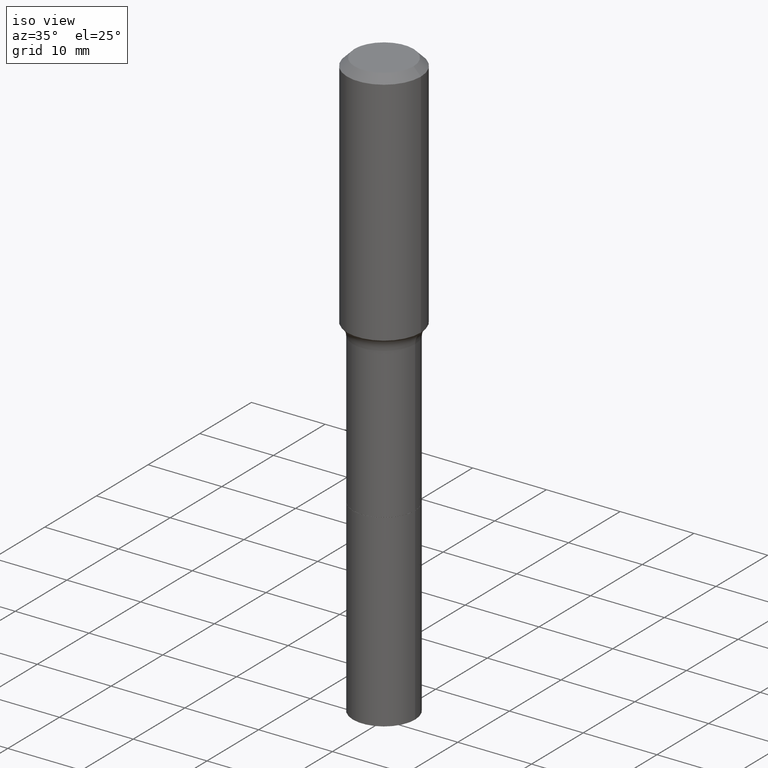
[diagram: clean part render]
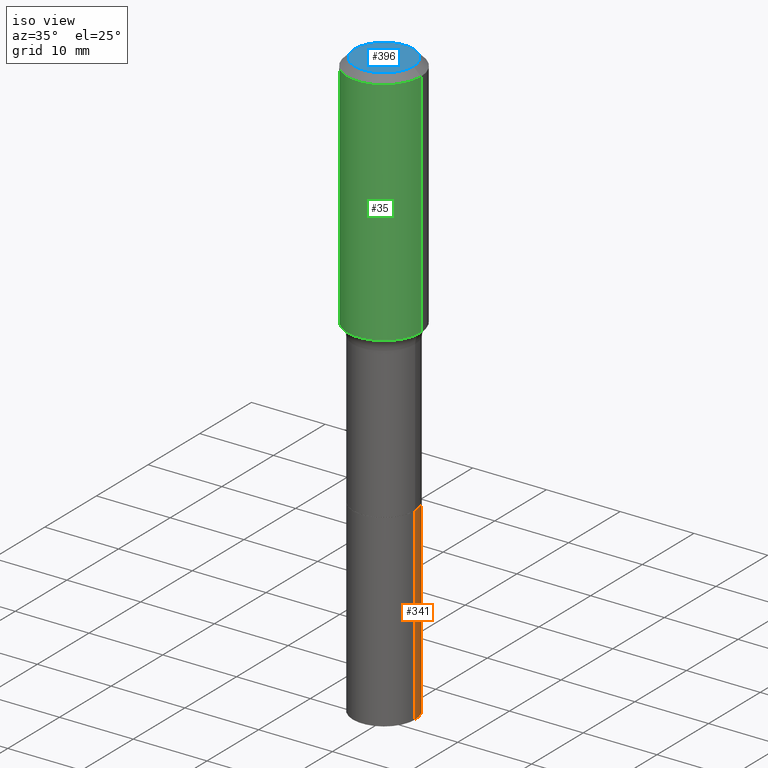
[diagram: same view with three faces highlighted in distinct colors, each labeled with its STEP entity id]
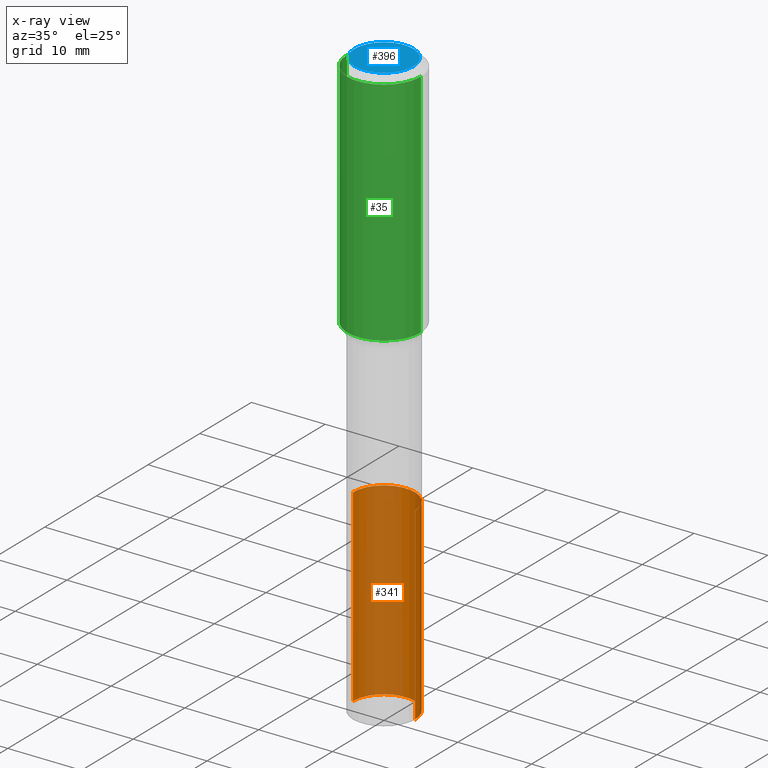
[diagram: x-ray of the same camera — body ghosted, the three highlighted faces saturated]
A machine part, iso view with three faces highlighted in distinct colors.
The next image is the same camera in x-ray (body ghosted, the three faces saturated) — at least one of them is partly hidden behind the body in this view.
Their STEP definitions:

[orange] entity #341 — the highlighted cylindrical surface (partial cylindrical patch) has radius 4.2164 mm, axis along (-0, 0, 1).
#1 = EDGE_CURVE ( 'NONE', #290, #178, #314, .T. ) ;
#38 = DIRECTION ( 'NONE',  ( 1.000000000000000000, -6.982962677686268288E-15, 0.000000000000000000 ) ) ;
#69 = DIRECTION ( 'NONE',  ( -2.445468806185136877E-29, 3.491481338843145188E-15, 1.000000000000000000 ) ) ;
#75 = CARTESIAN_POINT ( 'NONE',  ( 5.237215995326088654E-29, -7.477356435266480697E-15, -2.141600000000000392 ) ) ;
#91 = ORIENTED_EDGE ( 'NONE', *, *, #282, .F. ) ;
#94 = CIRCLE ( 'NONE', #453, 0.1660000000000000087 ) ;
#109 = DIRECTION ( 'NONE',  ( -2.445468806185136597E-29, 3.491481338843145583E-15, 1.000000000000000000 ) ) ;
#142 = CARTESIAN_POINT ( 'NONE',  ( -0.1660000000000002307, -8.057562088681656781E-15, -3.149600000000000399 ) ) ;
#144 = CARTESIAN_POINT ( 'NONE',  ( -0.1660000000000000087, -8.057562088681659936E-15, -2.141600000000000392 ) ) ;
#147 = AXIS2_PLACEMENT_3D ( 'NONE', #466, #109, #214 ) ;
#158 = ORIENTED_EDGE ( 'NONE', *, *, #212, .F. ) ;
#178 = VERTEX_POINT ( 'NONE', #142 ) ;
#205 = VERTEX_POINT ( 'NONE', #346 ) ;
#212 = EDGE_CURVE ( 'NONE', #205, #334, #94, .T. ) ;
#214 = DIRECTION ( 'NONE',  ( 1.000000000000000000, -6.982962677686263555E-15, 0.000000000000000000 ) ) ;
#219 = AXIS2_PLACEMENT_3D ( 'NONE', #498, #487, #367 ) ;
#229 = LINE ( 'NONE', #271, #461 ) ;
#241 = CARTESIAN_POINT ( 'NONE',  ( -0.1660000000000001197, -6.297855493904714130E-15, -2.141600000000000392 ) ) ;
#247 = LINE ( 'NONE', #241, #305 ) ;
#263 = CARTESIAN_POINT ( 'NONE',  ( 0.1660000000000002307, -1.215594142931629328E-14, -3.149600000000000399 ) ) ;
#267 = DIRECTION ( 'NONE',  ( -2.445468806185136597E-29, 3.491481338843145583E-15, 1.000000000000000000 ) ) ;
#271 = CARTESIAN_POINT ( 'NONE',  ( 0.1660000000000001197, -8.636528239762401666E-15, -2.141600000000000392 ) ) ;
#281 = ORIENTED_EDGE ( 'NONE', *, *, #428, .T. ) ;
#282 = EDGE_CURVE ( 'NONE', #290, #205, #229, .T. ) ;
#290 = VERTEX_POINT ( 'NONE', #263 ) ;
#304 = CYLINDRICAL_SURFACE ( 'NONE', #147, 0.1660000000000001197 ) ;
#305 = VECTOR ( 'NONE', #335, 39.37007874015748143 ) ;
#314 = CIRCLE ( 'NONE', #219, 0.1660000000000002307 ) ;
#334 = VERTEX_POINT ( 'NONE', #144 ) ;
#335 = DIRECTION ( 'NONE',  ( -2.445468806185136877E-29, 3.491481338843145188E-15, 1.000000000000000000 ) ) ;
#341 = ADVANCED_FACE ( 'NONE', ( #470 ), #304, .T. ) ;
#346 = CARTESIAN_POINT ( 'NONE',  ( 0.1660000000000000087, -8.636528239762401666E-15, -2.141600000000000392 ) ) ;
#367 = DIRECTION ( 'NONE',  ( 1.000000000000000000, -6.982962677686265133E-15, 0.000000000000000000 ) ) ;
#428 = EDGE_CURVE ( 'NONE', #178, #334, #247, .T. ) ;
#453 = AXIS2_PLACEMENT_3D ( 'NONE', #75, #267, #38 ) ;
#456 = ORIENTED_EDGE ( 'NONE', *, *, #1, .T. ) ;
#461 = VECTOR ( 'NONE', #69, 39.37007874015748143 ) ;
#466 = CARTESIAN_POINT ( 'NONE',  ( 5.237215995326088654E-29, -7.477356435266480697E-15, -2.141600000000000392 ) ) ;
#470 = FACE_OUTER_BOUND ( 'NONE', #492, .T. ) ;
#487 = DIRECTION ( 'NONE',  ( -2.445468806185136597E-29, 3.491481338843145583E-15, 1.000000000000000000 ) ) ;
#492 = EDGE_LOOP ( 'NONE', ( #456, #281, #158, #91 ) ) ;
#498 = CARTESIAN_POINT ( 'NONE',  ( 7.702248551960706711E-29, -1.099676962482037231E-14, -3.149600000000000399 ) ) ;

[blue] entity #396 — the highlighted planar face has unit normal (0, -0, -1).
#16 = DIRECTION ( 'NONE',  ( -2.445468806185136597E-29, 3.491481338843145583E-15, 1.000000000000000000 ) ) ;
#25 = CIRCLE ( 'NONE', #157, 0.1574800000000000089 ) ;
#33 = CIRCLE ( 'NONE', #237, 0.1574800000000000089 ) ;
#34 = DIRECTION ( 'NONE',  ( -2.445468806185136597E-29, 3.491481338843145583E-15, 1.000000000000000000 ) ) ;
#68 = EDGE_CURVE ( 'NONE', #126, #198, #25, .T. ) ;
#126 = VERTEX_POINT ( 'NONE', #333 ) ;
#157 = AXIS2_PLACEMENT_3D ( 'NONE', #177, #16, #455 ) ;
#164 = PLANE ( 'NONE',  #348 ) ;
#177 = CARTESIAN_POINT ( 'NONE',  ( -9.427742298522567634E-47, 1.346031739168368355E-32, 3.855188123715870730E-18 ) ) ;
#196 = ORIENTED_EDGE ( 'NONE', *, *, #68, .T. ) ;
#198 = VERTEX_POINT ( 'NONE', #356 ) ;
#201 = EDGE_CURVE ( 'NONE', #198, #126, #33, .T. ) ;
#237 = AXIS2_PLACEMENT_3D ( 'NONE', #301, #34, #393 ) ;
#240 = ORIENTED_EDGE ( 'NONE', *, *, #201, .T. ) ;
#284 = FACE_OUTER_BOUND ( 'NONE', #287, .T. ) ;
#287 = EDGE_LOOP ( 'NONE', ( #240, #196 ) ) ;
#288 = DIRECTION ( 'NONE',  ( 2.438088387897960049E-29, -3.491481338843145188E-15, -1.000000000000000000 ) ) ;
#301 = CARTESIAN_POINT ( 'NONE',  ( -9.427742298522567634E-47, 1.346031739168368355E-32, 3.855188123715870730E-18 ) ) ;
#333 = CARTESIAN_POINT ( 'NONE',  ( 0.1574800000000000089, -1.284169937930321386E-15, 3.855188123724205385E-18 ) ) ;
#348 = AXIS2_PLACEMENT_3D ( 'NONE', #442, #288, #485 ) ;
#356 = CARTESIAN_POINT ( 'NONE',  ( -0.1574800000000000089, 1.168406772637159815E-15, 3.855188123707939751E-18 ) ) ;
#393 = DIRECTION ( 'NONE',  ( 1.000000000000000000, -6.982962677686265922E-15, 4.876223630392693006E-29 ) ) ;
#396 = ADVANCED_FACE ( 'NONE', ( #284 ), #164, .F. ) ;
#442 = CARTESIAN_POINT ( 'NONE',  ( -4.713871149261283817E-47, 6.730158695841841775E-33, 1.927594061857935365E-18 ) ) ;
#455 = DIRECTION ( 'NONE',  ( 1.000000000000000000, -6.982962677686265922E-15, 4.876223630392693006E-29 ) ) ;
#485 = DIRECTION ( 'NONE',  ( -1.000000000000000000, 6.982962677686265922E-15, -4.876176775795935793E-29 ) ) ;

[green] entity #35 — the highlighted cylindrical surface (partial cylindrical patch) has radius 5 mm, axis along (-0, 0, 1).
#2 = CIRCLE ( 'NONE', #370, 0.1968500000000001915 ) ;
#11 = DIRECTION ( 'NONE',  ( -2.445468806185136597E-29, 3.491481338843145583E-15, 1.000000000000000000 ) ) ;
#17 = EDGE_LOOP ( 'NONE', ( #479, #375, #46, #85 ) ) ;
#19 = CARTESIAN_POINT ( 'NONE',  ( 0.1968500000000001082, -1.374596203102542397E-15, 9.598753983154305062E-30 ) ) ;
#23 = CARTESIAN_POINT ( 'NONE',  ( -0.1968500000000001915, -3.049459866628111563E-15, -1.274004587246543307 ) ) ;
#24 = VERTEX_POINT ( 'NONE', #23 ) ;
#35 = ADVANCED_FACE ( 'NONE', ( #67 ), #410, .T. ) ;
#46 = ORIENTED_EDGE ( 'NONE', *, *, #120, .T. ) ;
#55 = VECTOR ( 'NONE', #211, 39.37007874015748143 ) ;
#64 = VERTEX_POINT ( 'NONE', #326 ) ;
#67 = FACE_OUTER_BOUND ( 'NONE', #17, .T. ) ;
#76 = EDGE_CURVE ( 'NONE', #24, #417, #2, .T. ) ;
#85 = ORIENTED_EDGE ( 'NONE', *, *, #374, .F. ) ;
#106 = AXIS2_PLACEMENT_3D ( 'NONE', #131, #325, #200 ) ;
#108 = AXIS2_PLACEMENT_3D ( 'NONE', #340, #11, #218 ) ;
#120 = EDGE_CURVE ( 'NONE', #417, #64, #203, .T. ) ;
#131 = CARTESIAN_POINT ( 'NONE',  ( 9.627810689950955906E-31, -1.374596203102556794E-16, -0.03937000000000030059 ) ) ;
#151 = DIRECTION ( 'NONE',  ( -2.445468806185136877E-29, 3.491481338843145188E-15, 1.000000000000000000 ) ) ;
#200 = DIRECTION ( 'NONE',  ( 1.000000000000000000, -6.982962677686266711E-15, 0.000000000000000000 ) ) ;
#203 = LINE ( 'NONE', #19, #55 ) ;
#211 = DIRECTION ( 'NONE',  ( -2.445468806185136877E-29, 3.491481338843145188E-15, 1.000000000000000000 ) ) ;
#218 = DIRECTION ( 'NONE',  ( 1.000000000000000000, -6.982962677686266711E-15, 4.876176775795935793E-29 ) ) ;
#221 = LINE ( 'NONE', #226, #227 ) ;
#226 = CARTESIAN_POINT ( 'NONE',  ( -0.1968500000000001082, 1.398703375343757985E-15, -9.682923725166787881E-30 ) ) ;
#227 = VECTOR ( 'NONE', #151, 39.37007874015748143 ) ;
#235 = CIRCLE ( 'NONE', #106, 0.1968500000000000527 ) ;
#245 = DIRECTION ( 'NONE',  ( 1.000000000000000000, -6.982962677686266711E-15, 0.000000000000000000 ) ) ;
#321 = EDGE_CURVE ( 'NONE', #24, #480, #221, .T. ) ;
#325 = DIRECTION ( 'NONE',  ( -2.445468806185136597E-29, 3.491481338843145583E-15, 1.000000000000000000 ) ) ;
#326 = CARTESIAN_POINT ( 'NONE',  ( 0.1968500000000000527, -1.512055823412797583E-15, -0.03937000000000030059 ) ) ;
#332 = CARTESIAN_POINT ( 'NONE',  ( -0.1968500000000000527, -8.941080557973042837E-16, -0.03937000000000030059 ) ) ;
#340 = CARTESIAN_POINT ( 'NONE',  ( 0.000000000000000000, 0.000000000000000000, 0.000000000000000000 ) ) ;
#370 = AXIS2_PLACEMENT_3D ( 'NONE', #447, #416, #245 ) ;
#374 = EDGE_CURVE ( 'NONE', #480, #64, #235, .T. ) ;
#375 = ORIENTED_EDGE ( 'NONE', *, *, #76, .T. ) ;
#410 = CYLINDRICAL_SURFACE ( 'NONE', #108, 0.1968500000000001082 ) ;
#416 = DIRECTION ( 'NONE',  ( -2.445468806185136597E-29, 3.491481338843145583E-15, 1.000000000000000000 ) ) ;
#417 = VERTEX_POINT ( 'NONE', #496 ) ;
#447 = CARTESIAN_POINT ( 'NONE',  ( 3.115538477048191315E-29, -4.448163241971869351E-15, -1.274004587246543307 ) ) ;
#479 = ORIENTED_EDGE ( 'NONE', *, *, #321, .F. ) ;
#480 = VERTEX_POINT ( 'NONE', #332 ) ;
#496 = CARTESIAN_POINT ( 'NONE',  ( 0.1968500000000001915, -5.822759445074413326E-15, -1.274004587246543307 ) ) ;